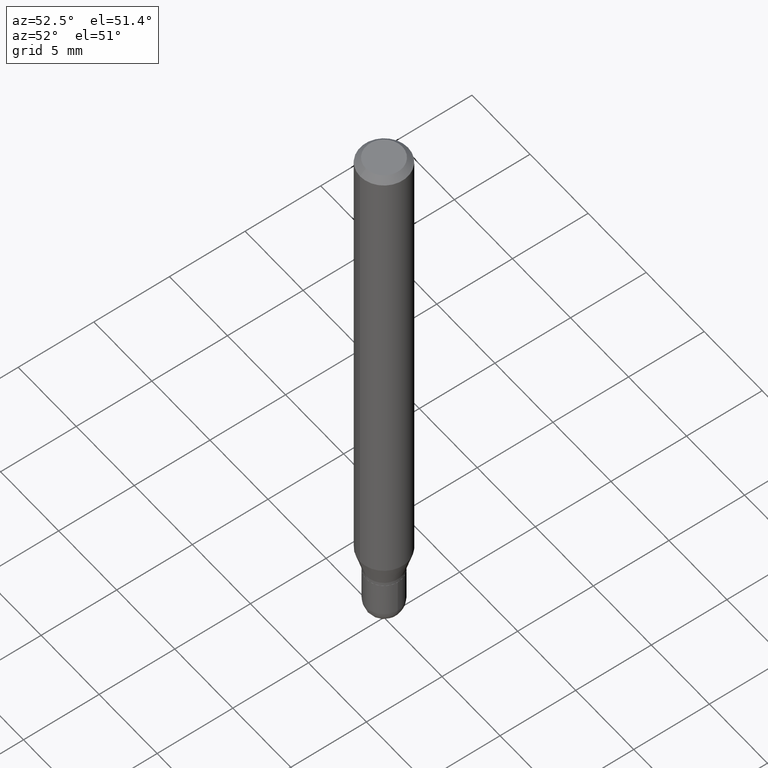
[diagram: clean part render]
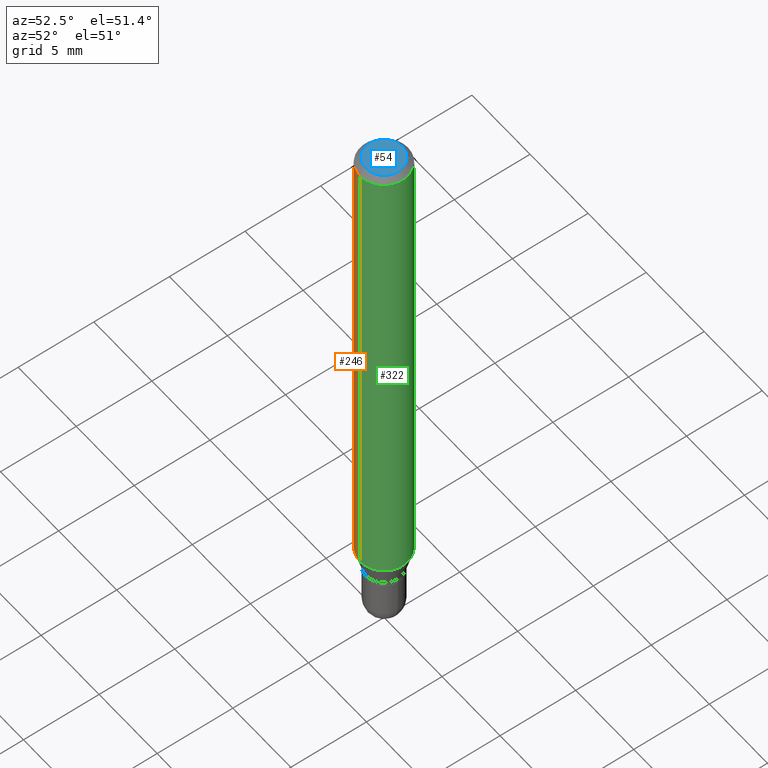
[diagram: same view with three faces highlighted in distinct colors, each labeled with its STEP entity id]
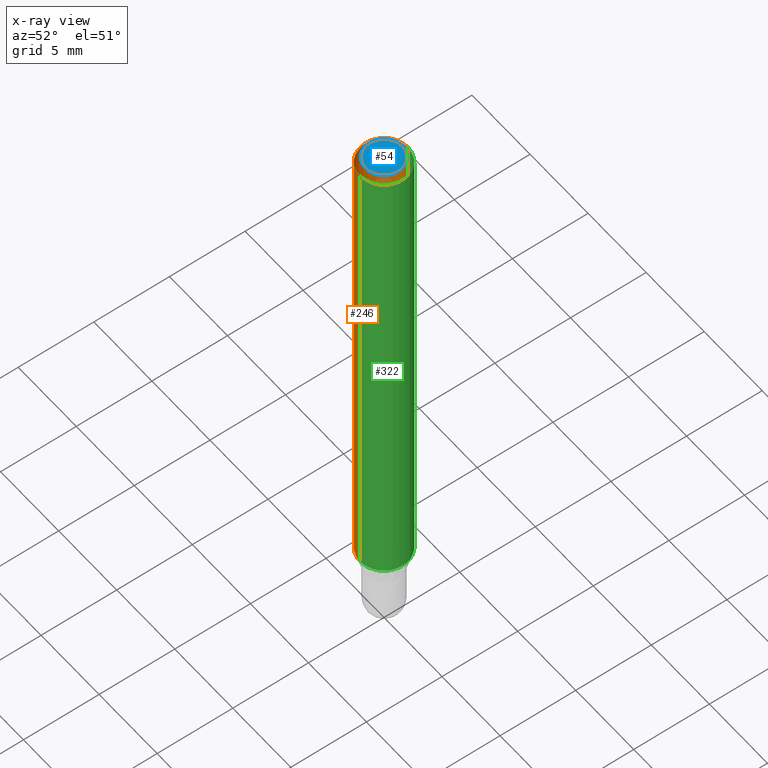
[diagram: x-ray of the same camera — body ghosted, the three highlighted faces saturated]
A machine part, auxiliary view with three faces highlighted in distinct colors.
The next image is the same camera in x-ray (body ghosted, the three faces saturated) — at least one of them is partly hidden behind the body in this view.
Their STEP definitions:

[orange] entity #246 — the highlighted cylindrical surface (edge-blend (fillet) strip) has radius 1.5875 mm, axis along (-0, 0, 1).
#9 = DIRECTION ( 'NONE',  ( -6.982962677686265922E-15, -1.000000000000000000, 3.483106191921935554E-15 ) ) ;
#31 = ORIENTED_EDGE ( 'NONE', *, *, #430, .T. ) ;
#45 = VECTOR ( 'NONE', #313, 39.37007874015748143 ) ;
#55 = CARTESIAN_POINT ( 'NONE',  ( 3.155316114870427558E-29, -4.505072281246019250E-15, -1.290287187078897890 ) ) ;
#58 = CARTESIAN_POINT ( 'NONE',  ( 4.440892098500625669E-16, 0.06250000000000000000, -2.182204244121189097E-16 ) ) ;
#59 = VERTEX_POINT ( 'NONE', #190 ) ;
#63 = AXIS2_PLACEMENT_3D ( 'NONE', #381, #485, #417 ) ;
#75 = CARTESIAN_POINT ( 'NONE',  ( -4.364351673553598685E-16, -0.06250000000000446865, -1.290287187078897668 ) ) ;
#91 = CARTESIAN_POINT ( 'NONE',  ( 4.440892098500943678E-16, 0.06249999999999995837, -0.01500000000000022669 ) ) ;
#103 = CIRCLE ( 'NONE', #319, 0.06250000000000000000 ) ;
#141 = CARTESIAN_POINT ( 'NONE',  ( -4.364351673553912750E-16, -0.06250000000000005551, -0.01499999999999979128 ) ) ;
#164 = ORIENTED_EDGE ( 'NONE', *, *, #275, .F. ) ;
#172 = DIRECTION ( 'NONE',  ( -2.445437067397219472E-29, 3.491526790593902555E-15, 1.000000000000000000 ) ) ;
#179 = DIRECTION ( 'NONE',  ( -6.982962677686265922E-15, -1.000000000000000000, 4.370956789862821150E-15 ) ) ;
#190 = CARTESIAN_POINT ( 'NONE',  ( 4.440892098500942692E-16, 0.06249999999999552441, -1.290287187078898112 ) ) ;
#191 = CARTESIAN_POINT ( 'NONE',  ( -4.364351673553916201E-16, -0.06250000000000000000, 2.182204244121189097E-16 ) ) ;
#204 = EDGE_LOOP ( 'NONE', ( #164, #247, #31, #242 ) ) ;
#215 = FACE_OUTER_BOUND ( 'NONE', #204, .T. ) ;
#219 = LINE ( 'NONE', #58, #332 ) ;
#222 = VERTEX_POINT ( 'NONE', #75 ) ;
#236 = EDGE_CURVE ( 'NONE', #59, #222, #103, .T. ) ;
#242 = ORIENTED_EDGE ( 'NONE', *, *, #479, .F. ) ;
#244 = VERTEX_POINT ( 'NONE', #91 ) ;
#246 = ADVANCED_FACE ( 'NONE', ( #215 ), #345, .T. ) ;
#247 = ORIENTED_EDGE ( 'NONE', *, *, #236, .T. ) ;
#266 = CIRCLE ( 'NONE', #284, 0.06250000000000000000 ) ;
#275 = EDGE_CURVE ( 'NONE', #59, #244, #219, .T. ) ;
#277 = CARTESIAN_POINT ( 'NONE',  ( 3.668155601095830977E-31, -5.237290185890857728E-17, -0.01500000000000000812 ) ) ;
#284 = AXIS2_PLACEMENT_3D ( 'NONE', #277, #371, #9 ) ;
#313 = DIRECTION ( 'NONE',  ( -2.445437067397219472E-29, 3.491526790593902555E-15, 1.000000000000000000 ) ) ;
#319 = AXIS2_PLACEMENT_3D ( 'NONE', #55, #172, #179 ) ;
#332 = VECTOR ( 'NONE', #497, 39.37007874015748143 ) ;
#345 = CYLINDRICAL_SURFACE ( 'NONE', #63, 0.06250000000000000000 ) ;
#371 = DIRECTION ( 'NONE',  ( -2.445437067397219472E-29, 3.491526790593902555E-15, 1.000000000000000000 ) ) ;
#373 = VERTEX_POINT ( 'NONE', #141 ) ;
#381 = CARTESIAN_POINT ( 'NONE',  ( 0.000000000000000000, 0.000000000000000000, 0.000000000000000000 ) ) ;
#388 = LINE ( 'NONE', #191, #45 ) ;
#417 = DIRECTION ( 'NONE',  ( -6.982962677686265922E-15, -1.000000000000000000, 3.491526790593902555E-15 ) ) ;
#430 = EDGE_CURVE ( 'NONE', #222, #373, #388, .T. ) ;
#479 = EDGE_CURVE ( 'NONE', #244, #373, #266, .T. ) ;
#485 = DIRECTION ( 'NONE',  ( -2.445437067397219472E-29, 3.491526790593902555E-15, 1.000000000000000000 ) ) ;
#497 = DIRECTION ( 'NONE',  ( -2.445437067397219472E-29, 3.491526790593902555E-15, 1.000000000000000000 ) ) ;

[blue] entity #54 — the highlighted planar face has unit normal (0, -0, -1).
#4 = AXIS2_PLACEMENT_3D ( 'NONE', #346, #34, #142 ) ;
#5 = AXIS2_PLACEMENT_3D ( 'NONE', #402, #153, #314 ) ;
#14 = ORIENTED_EDGE ( 'NONE', *, *, #192, .T. ) ;
#34 = DIRECTION ( 'NONE',  ( 2.445437067397219192E-29, -3.491526790593902555E-15, -1.000000000000000000 ) ) ;
#54 = ADVANCED_FACE ( 'NONE', ( #414 ), #457, .F. ) ;
#62 = EDGE_LOOP ( 'NONE', ( #148, #14 ) ) ;
#79 = CIRCLE ( 'NONE', #235, 0.04749999999999999362 ) ;
#142 = DIRECTION ( 'NONE',  ( 6.982962677686265922E-15, 1.000000000000000000, -3.491526790593902555E-15 ) ) ;
#148 = ORIENTED_EDGE ( 'NONE', *, *, #293, .T. ) ;
#153 = DIRECTION ( 'NONE',  ( -2.445437067397219472E-29, 3.491526790593902555E-15, 1.000000000000000000 ) ) ;
#160 = CARTESIAN_POINT ( 'NONE',  ( -3.773273898774340269E-16, -0.04749999999999999362, 1.569893619195402252E-16 ) ) ;
#192 = EDGE_CURVE ( 'NONE', #481, #494, #225, .T. ) ;
#224 = DIRECTION ( 'NONE',  ( -6.982962677686266711E-15, -1.000000000000000000, 3.491526790593902949E-15 ) ) ;
#225 = CIRCLE ( 'NONE', #5, 0.04749999999999999362 ) ;
#235 = AXIS2_PLACEMENT_3D ( 'NONE', #462, #389, #224 ) ;
#293 = EDGE_CURVE ( 'NONE', #494, #481, #79, .T. ) ;
#314 = DIRECTION ( 'NONE',  ( -6.982962677686266711E-15, -1.000000000000000000, 3.491526790593902949E-15 ) ) ;
#346 = CARTESIAN_POINT ( 'NONE',  ( 3.316907271900976096E-16, 0.04749999999999999362, -1.702766028700454538E-16 ) ) ;
#389 = DIRECTION ( 'NONE',  ( -2.445437067397219472E-29, 3.491526790593902555E-15, 1.000000000000000000 ) ) ;
#402 = CARTESIAN_POINT ( 'NONE',  ( 2.166207436253580502E-46, -3.092850516784356594E-32, -8.858160633670141160E-18 ) ) ;
#414 = FACE_OUTER_BOUND ( 'NONE', #62, .T. ) ;
#435 = CARTESIAN_POINT ( 'NONE',  ( 3.840629472727447874E-16, 0.04749999999999999362, -1.747056831868805136E-16 ) ) ;
#457 = PLANE ( 'NONE',  #4 ) ;
#462 = CARTESIAN_POINT ( 'NONE',  ( 2.166207436253580502E-46, -3.092850516784356594E-32, -8.858160633670141160E-18 ) ) ;
#481 = VERTEX_POINT ( 'NONE', #160 ) ;
#494 = VERTEX_POINT ( 'NONE', #435 ) ;

[green] entity #322 — the highlighted cylindrical surface (edge-blend (fillet) strip) has radius 1.5875 mm, axis along (-0, 0, 1).
#11 = ORIENTED_EDGE ( 'NONE', *, *, #430, .F. ) ;
#16 = AXIS2_PLACEMENT_3D ( 'NONE', #184, #340, #470 ) ;
#45 = VECTOR ( 'NONE', #313, 39.37007874015748143 ) ;
#58 = CARTESIAN_POINT ( 'NONE',  ( 4.440892098500625669E-16, 0.06250000000000000000, -2.182204244121189097E-16 ) ) ;
#59 = VERTEX_POINT ( 'NONE', #190 ) ;
#70 = CARTESIAN_POINT ( 'NONE',  ( 3.668155601095830977E-31, -5.237290185890857728E-17, -0.01500000000000000812 ) ) ;
#75 = CARTESIAN_POINT ( 'NONE',  ( -4.364351673553598685E-16, -0.06250000000000446865, -1.290287187078897668 ) ) ;
#83 = FACE_OUTER_BOUND ( 'NONE', #487, .T. ) ;
#91 = CARTESIAN_POINT ( 'NONE',  ( 4.440892098500943678E-16, 0.06249999999999995837, -0.01500000000000022669 ) ) ;
#92 = AXIS2_PLACEMENT_3D ( 'NONE', #70, #367, #245 ) ;
#141 = CARTESIAN_POINT ( 'NONE',  ( -4.364351673553912750E-16, -0.06250000000000005551, -0.01499999999999979128 ) ) ;
#152 = EDGE_CURVE ( 'NONE', #373, #244, #250, .T. ) ;
#166 = ORIENTED_EDGE ( 'NONE', *, *, #275, .T. ) ;
#184 = CARTESIAN_POINT ( 'NONE',  ( 0.000000000000000000, 0.000000000000000000, 0.000000000000000000 ) ) ;
#190 = CARTESIAN_POINT ( 'NONE',  ( 4.440892098500942692E-16, 0.06249999999999552441, -1.290287187078898112 ) ) ;
#191 = CARTESIAN_POINT ( 'NONE',  ( -4.364351673553916201E-16, -0.06250000000000000000, 2.182204244121189097E-16 ) ) ;
#219 = LINE ( 'NONE', #58, #332 ) ;
#222 = VERTEX_POINT ( 'NONE', #75 ) ;
#229 = EDGE_CURVE ( 'NONE', #222, #59, #251, .T. ) ;
#244 = VERTEX_POINT ( 'NONE', #91 ) ;
#245 = DIRECTION ( 'NONE',  ( -6.982962677686265922E-15, -1.000000000000000000, 3.483106191921935554E-15 ) ) ;
#250 = CIRCLE ( 'NONE', #92, 0.06250000000000000000 ) ;
#251 = CIRCLE ( 'NONE', #495, 0.06250000000000000000 ) ;
#275 = EDGE_CURVE ( 'NONE', #59, #244, #219, .T. ) ;
#303 = CARTESIAN_POINT ( 'NONE',  ( 3.155316114870427558E-29, -4.505072281246019250E-15, -1.290287187078897890 ) ) ;
#313 = DIRECTION ( 'NONE',  ( -2.445437067397219472E-29, 3.491526790593902555E-15, 1.000000000000000000 ) ) ;
#322 = ADVANCED_FACE ( 'NONE', ( #83 ), #415, .T. ) ;
#332 = VECTOR ( 'NONE', #497, 39.37007874015748143 ) ;
#337 = DIRECTION ( 'NONE',  ( -2.445437067397219472E-29, 3.491526790593902555E-15, 1.000000000000000000 ) ) ;
#340 = DIRECTION ( 'NONE',  ( -2.445437067397219472E-29, 3.491526790593902555E-15, 1.000000000000000000 ) ) ;
#367 = DIRECTION ( 'NONE',  ( -2.445437067397219472E-29, 3.491526790593902555E-15, 1.000000000000000000 ) ) ;
#373 = VERTEX_POINT ( 'NONE', #141 ) ;
#388 = LINE ( 'NONE', #191, #45 ) ;
#410 = DIRECTION ( 'NONE',  ( -6.982962677686265922E-15, -1.000000000000000000, 4.370956789862821150E-15 ) ) ;
#415 = CYLINDRICAL_SURFACE ( 'NONE', #16, 0.06250000000000000000 ) ;
#418 = ORIENTED_EDGE ( 'NONE', *, *, #152, .F. ) ;
#430 = EDGE_CURVE ( 'NONE', #222, #373, #388, .T. ) ;
#470 = DIRECTION ( 'NONE',  ( -6.982962677686265922E-15, -1.000000000000000000, 3.491526790593902555E-15 ) ) ;
#487 = EDGE_LOOP ( 'NONE', ( #489, #166, #418, #11 ) ) ;
#489 = ORIENTED_EDGE ( 'NONE', *, *, #229, .T. ) ;
#495 = AXIS2_PLACEMENT_3D ( 'NONE', #303, #337, #410 ) ;
#497 = DIRECTION ( 'NONE',  ( -2.445437067397219472E-29, 3.491526790593902555E-15, 1.000000000000000000 ) ) ;